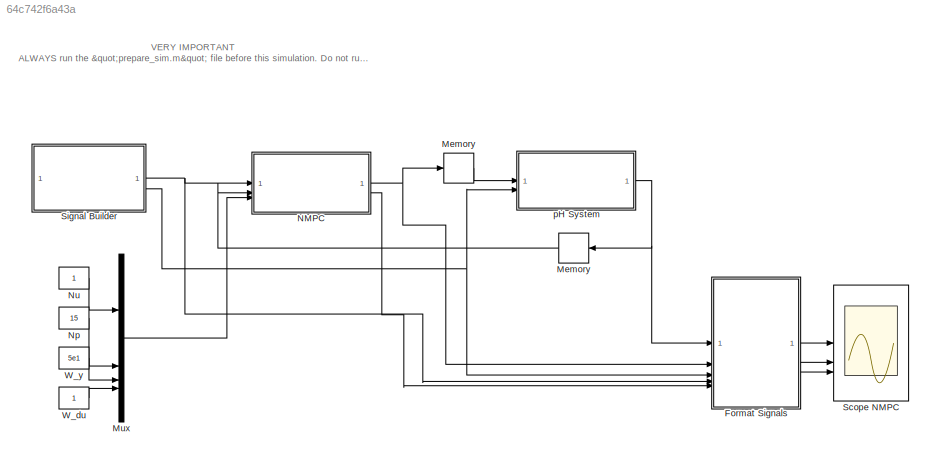
MODEL slx_64c742f6a43a
KIND model
CONFIG AbsTol = auto
CONFIG EnableMultiTasking = off
CONFIG FixedStep = auto
CONFIG MaxStep = auto
CONFIG MinStep = auto
CONFIG RelTol = 1e-3
CONFIG SampleTimeConstraint = Unconstrained
CONFIG SolverName = ode45
CONFIG StartTime = 0.0
CONFIG StopTime = 900
BLOCK [Memory]  Memory 
  InitialCondition = [pH_const.x_0(1); pH_const.x_0(2); pH_const.y_0(1)]
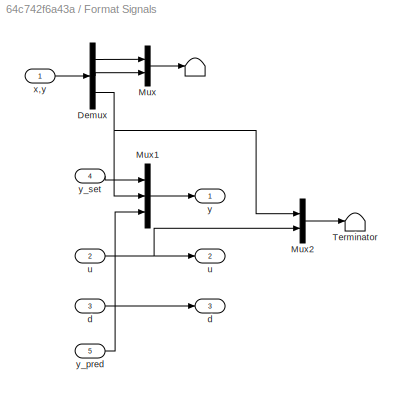
BLOCK [SubSystem] Format Signals
BLOCK [Terminator] Format Signals/  
BLOCK [Inport] Format Signals/ d 
  Port = 3
BLOCK [Inport] Format Signals/ u 
  Port = 2
BLOCK [Demux] Format Signals/Demux
  Outputs = 3
BLOCK [Mux] Format Signals/Mux
  DisplayOption = bar
  Inputs = 2
BLOCK [Mux] Format Signals/Mux1
  DisplayOption = bar
  Inputs = 3
BLOCK [Mux] Format Signals/Mux2
  DisplayOption = bar
  Inputs = 2
BLOCK [Terminator] Format Signals/Terminator
BLOCK [Outport] Format Signals/d
  Port = 3
  VectorParamsAs1DForOutWhenUnconnected = off
BLOCK [Outport] Format Signals/u
  Port = 2
  VectorParamsAs1DForOutWhenUnconnected = off
BLOCK [Inport] Format Signals/x,y
BLOCK [Outport] Format Signals/y
  VectorParamsAs1DForOutWhenUnconnected = off
BLOCK [Inport] Format Signals/y_pred
  Port = 5
BLOCK [Inport] Format Signals/y_set
  Port = 4
BLOCK [Memory] Memory
  InitialCondition = pH_const.u_0
  NameLocation = top
BLOCK [Mux] Mux
  DisplayOption = bar
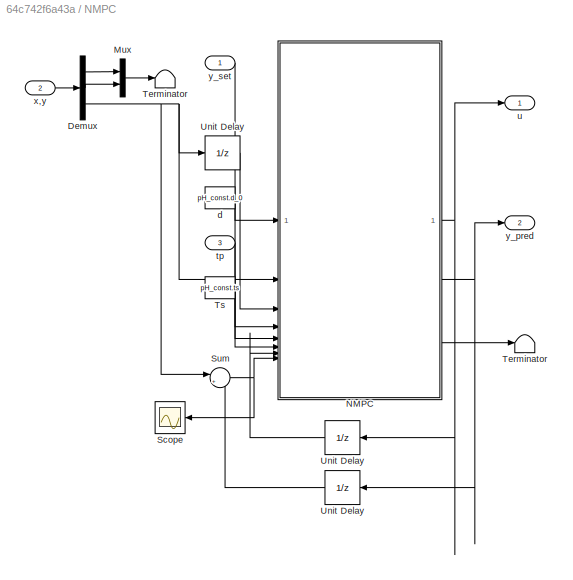
BLOCK [SubSystem] NMPC
BLOCK [UnitDelay] NMPC/  Unit Delay  
  HasFrameUpgradeWarning = on
  InitialCondition = pH_const.y_0
  SampleTime = pH_const.ts
BLOCK [UnitDelay] NMPC/ Unit Delay 
  HasFrameUpgradeWarning = on
  InitialCondition = pH_const.y_0
  NameLocation = top
  SampleTime = pH_const.ts
BLOCK [Demux] NMPC/Demux
  Outputs = 3
BLOCK [Mux] NMPC/Mux
  DisplayOption = bar
  Inputs = 2
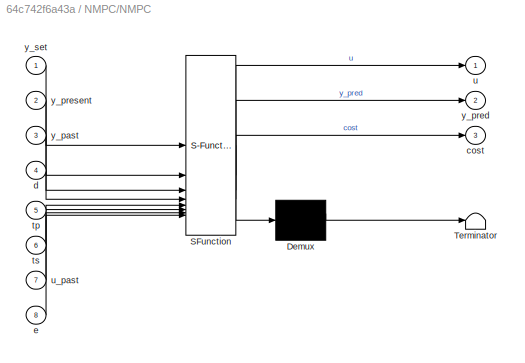
BLOCK [SubSystem] NMPC/NMPC 
  ErrorFcn = Stateflow.Translate.translate
  PermitHierarchicalResolution = ExplicitOnly
  SFBlockType = MATLAB Function
  SystemSampleTime = pH_const.ts
  TreatAsAtomicUnit = on
BLOCK [Demux] NMPC/NMPC / Demux 
  Outputs = 1
BLOCK [S-Function] NMPC/NMPC / SFunction 
  EnableBusSupport = on
  FunctionName = sf_sfun
  PortCounts = [8 4]
  SFcnIsStateOwnerBlock = off
  SFunctionDeploymentMode = off
  Tag = Stateflow S-Function 2
BLOCK [Terminator] NMPC/NMPC / Terminator 
BLOCK [Outport] NMPC/NMPC /cost
  Port = 3
  VectorParamsAs1DForOutWhenUnconnected = off
BLOCK [Inport] NMPC/NMPC /d
  Port = 4
BLOCK [Inport] NMPC/NMPC /e
  Port = 8
BLOCK [Inport] NMPC/NMPC /tp
  Port = 5
BLOCK [Inport] NMPC/NMPC /ts
  Port = 6
BLOCK [Outport] NMPC/NMPC /u
  VectorParamsAs1DForOutWhenUnconnected = off
BLOCK [Inport] NMPC/NMPC /u_past
  Port = 7
BLOCK [Inport] NMPC/NMPC /y_past
  Port = 3
BLOCK [Outport] NMPC/NMPC /y_pred
  Port = 2
  VectorParamsAs1DForOutWhenUnconnected = off
BLOCK [Inport] NMPC/NMPC /y_present
  Port = 2
BLOCK [Inport] NMPC/NMPC /y_set
BLOCK [Scope] NMPC/Scope
  Floating = off
  NameLocation = top
  NumInputPorts = 1
  ScopeSpecificationString = Simulink.scopes.TimeScopeBlockCfg('CurrentConfiguration', extmgr.ConfigurationSet(extmgr.Configuration('Core','General UI',true),extmgr.Configuration('Core','Source UI',true),extmgr.Configuration('Sources','WiredSimulink',true,'DataLoggingVariableName','ScopeData1'),extmgr.Configuration('Visuals','Time Domain',true,'SerializedDisplays',{struct('MinYLimReal','-1.44401','MaxYLimReal','1.14514','YLab...<+1416ch>
BLOCK [Sum] NMPC/Sum
  Inputs = |+-
BLOCK [Terminator] NMPC/Terminator
BLOCK [Terminator] NMPC/Terminator 
BLOCK [Constant] NMPC/Ts
  Value = pH_const.ts
BLOCK [UnitDelay] NMPC/Unit Delay
  HasFrameUpgradeWarning = on
  InitialCondition = pH_const.u_0
  SampleTime = pH_const.ts
BLOCK [Constant] NMPC/d
  Value = pH_const.d_0
BLOCK [Inport] NMPC/tp
  Port = 3
BLOCK [Outport] NMPC/u
  VectorParamsAs1DForOutWhenUnconnected = off
BLOCK [Inport] NMPC/x,y
  Port = 2
BLOCK [Outport] NMPC/y_pred
  Port = 2
  VectorParamsAs1DForOutWhenUnconnected = off
BLOCK [Inport] NMPC/y_set
BLOCK [Constant] Np
  Value = 15
BLOCK [Constant] Nu
BLOCK [Scope] Scope NMPC
  Floating = off
  NumInputPorts = 3
  ScopeSpecificationString = Simulink.scopes.TimeScopeBlockCfg('CurrentConfiguration', extmgr.ConfigurationSet(extmgr.Configuration('Core','General UI',true),extmgr.Configuration('Core','Source UI',true),extmgr.Configuration('Sources','WiredSimulink',true,'DataLoggingSaveFormat','StructureWithTime','DataLoggingVariableName','pH_sim_data','DataLogging',true),extmgr.Configuration('Visuals','Time Domain',true,'TimeAxisLabels','A...<+4246ch>
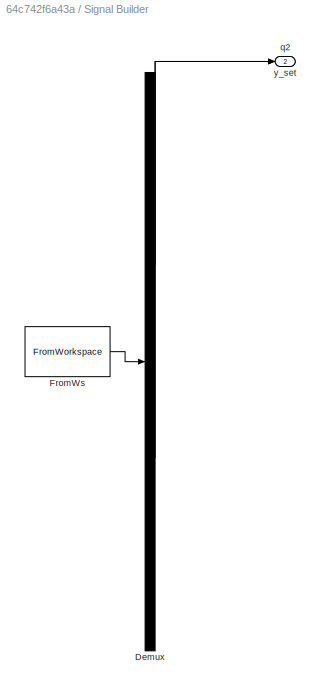
BLOCK [SubSystem] Signal Builder
  ClipboardFcn = sigbuilder_block('clipboard');
  CloseFcn = sigbuilder_block('close');
  ContinueFcn = sigbuilder_block('continue');
  CopyFcn = sigbuilder_block('copy');
  DeleteFcn = sigbuilder_block('delete');
  LoadFcn = sigbuilder_block('load');
  MaskHideContents = on
  ModelCloseFcn = sigbuilder_block('modelClose');
  NameChangeFcn = sigbuilder_block('namechange');
  OpenFcn = sigbuilder_block('open',[184.5 249 640.5 331.5 ]);
  PauseFcn = sigbuilder_block('pause');
  PreSaveFcn = sigbuilder_block('preSave');
  StartFcn = sigbuilder_block('start');
  StopFcn = sigbuilder_block('stop');
  Tag = STV Subsys
BLOCK [Demux] Signal Builder/Demux
  DisplayOption = none
  Outputs = 2
  Tag = STV Demux
BLOCK [FromWorkspace] Signal Builder/FromWs
  Tag = STV FromWs
  VariableName = tuvar
BLOCK [Outport] Signal Builder/q2
  Port = 2
  Tag = STV Outport
  VectorParamsAs1DForOutWhenUnconnected = off
BLOCK [Outport] Signal Builder/y_set
  Tag = STV Outport
  VectorParamsAs1DForOutWhenUnconnected = off
BLOCK [Constant] W_du
BLOCK [Constant] W_y
  Value = 5e1
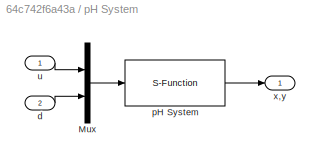
BLOCK [SubSystem] pH System
BLOCK [Mux] pH System/Mux
  DisplayOption = bar
  Inputs = 2
BLOCK [Inport] pH System/d
  Port = 2
BLOCK [S-Function] pH System/pH System
  EnableBusSupport = off
  FunctionName = pH_sfun
  SFcnIsStateOwnerBlock = off
  SFunctionDeploymentMode = off
BLOCK [Inport] pH System/u
BLOCK [Outport] pH System/x,y
  VectorParamsAs1DForOutWhenUnconnected = off
ANNOTATION (root): VERY IMPORTANT ALWAYS run the "prepare_sim.m" file before this simulation. Do not run directly
LINE  Memory :1 -> NMPC:2
LINE Format Signals/ d :1 -> Format Signals/d:1
NET Format Signals/ u :1 -> Format Signals/Mux2:2, Format Signals/u:1
LINE Format Signals/Demux:1 -> Format Signals/Mux:1
LINE Format Signals/Demux:2 -> Format Signals/Mux:2
NET Format Signals/Demux:3 -> Format Signals/Mux1:2, Format Signals/Mux2:1
LINE Format Signals/Mux1:1 -> Format Signals/y:1
LINE Format Signals/Mux2:1 -> Format Signals/Terminator:1
LINE Format Signals/Mux:1 -> Format Signals/  :1
LINE Format Signals/x,y:1 -> Format Signals/Demux:1
LINE Format Signals/y_pred:1 -> Format Signals/Mux1:3
LINE Format Signals/y_set:1 -> Format Signals/Mux1:1
LINE Format Signals:1 -> Scope NMPC:1
LINE Format Signals:2 -> Scope NMPC:2
LINE Format Signals:3 -> Scope NMPC:3
LINE Memory:1 -> pH System:1
LINE Mux:1 -> NMPC:3
LINE NMPC/  Unit Delay  :1 -> NMPC/Sum:2
LINE NMPC/ Unit Delay :1 -> NMPC/NMPC :3
LINE NMPC/Demux:1 -> NMPC/Mux:1
LINE NMPC/Demux:2 -> NMPC/Mux:2
NET NMPC/Demux:3 -> NMPC/ Unit Delay :1, NMPC/NMPC :2, NMPC/Sum:1
LINE NMPC/Mux:1 -> NMPC/Terminator:1
NET NMPC/NMPC :1 -> NMPC/Unit Delay:1, NMPC/u:1
NET NMPC/NMPC :2 -> NMPC/  Unit Delay  :1, NMPC/y_pred:1
LINE NMPC/NMPC :3 -> NMPC/Terminator :1
NET NMPC/Sum:1 -> NMPC/NMPC :8, NMPC/Scope:1
LINE NMPC/Ts:1 -> NMPC/NMPC :6
LINE NMPC/Unit Delay:1 -> NMPC/NMPC :7
LINE NMPC/d:1 -> NMPC/NMPC :4
LINE NMPC/tp:1 -> NMPC/NMPC :5
LINE NMPC/x,y:1 -> NMPC/Demux:1
LINE NMPC/y_set:1 -> NMPC/NMPC :1
NET NMPC:1 -> Format Signals:2, Memory:1
LINE NMPC:2 -> Format Signals:5
LINE Np:1 -> Mux:2
LINE Nu:1 -> Mux:1
NET Signal Builder:1 -> Format Signals:4, NMPC:1
NET Signal Builder:2 -> Format Signals:3, pH System:2
LINE W_du:1 -> Mux:4
LINE W_y:1 -> Mux:3
LINE pH System/Mux:1 -> pH System/pH System:1
LINE pH System/d:1 -> pH System/Mux:2
LINE pH System/pH System:1 -> pH System/x,y:1
LINE pH System/u:1 -> pH System/Mux:1
NET pH System:1 ->  Memory :1, Format Signals:1
note: NET lines group one-source signal fan-out (src -> all destinations, sorted); 1:1 wires keep LINE
CHART NMPC/NMPC
 states=1 transitions=1
  STATE_LABEL 'eML_blk_kernel()'
  STATE_LABEL "SCRIPT:\nfunction [u, y_pred, cost] = nmpc(y_set,y_present,y_past,d,tp,ts,u_past,e)\n    u = u_past; cost = 0; y_pred = y_present;\n    coder.extrinsic('get_control_input');\n    [u, y_pred, cost] = get_control_input(y_set,y_present,y_past,u_past,d,tp,ts,e,1);\nend"
CHART  states=0 transitions=0
